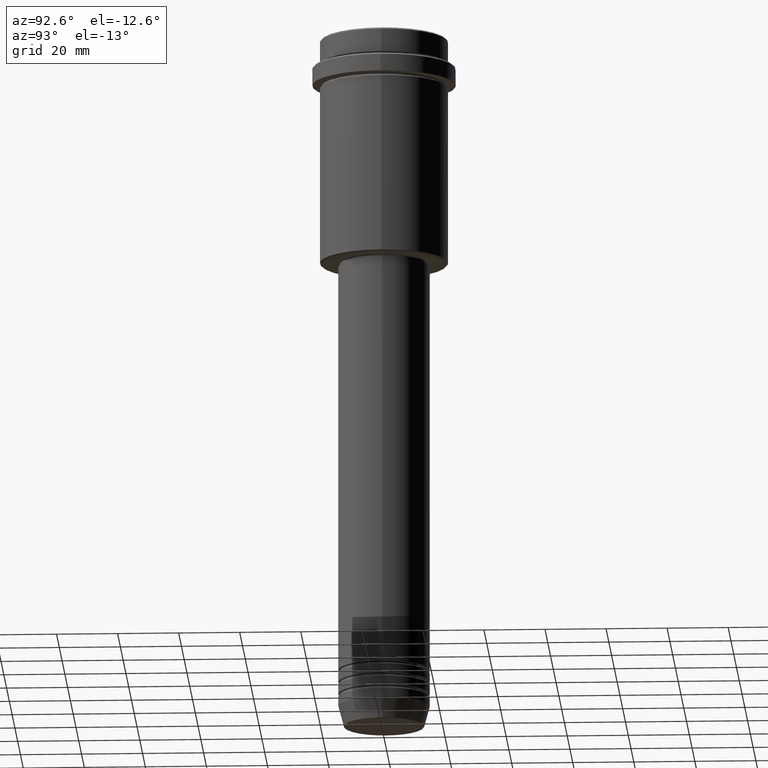
[diagram: clean part render]
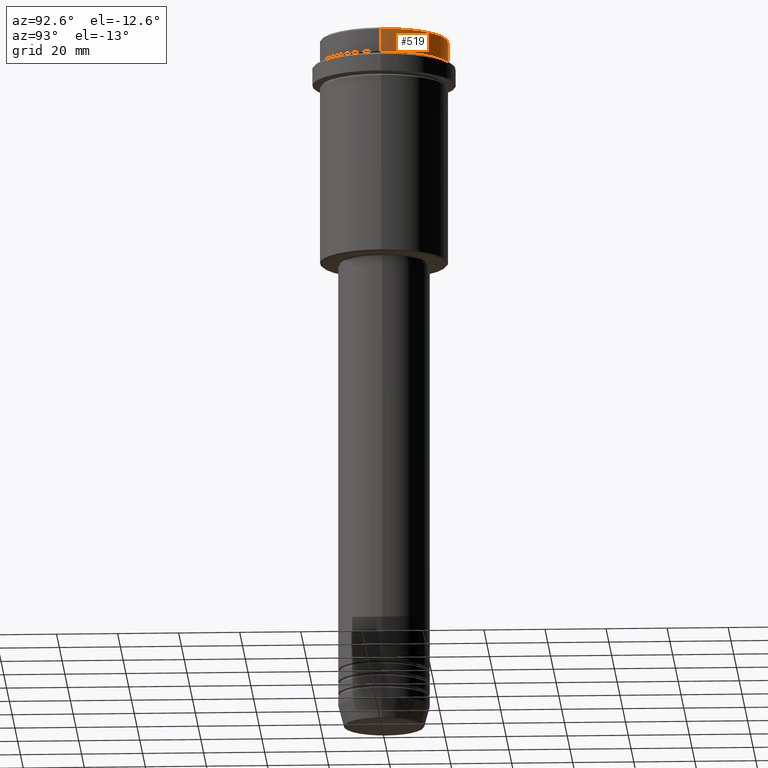
[diagram: same view with one face highlighted and labeled with its STEP entity id]
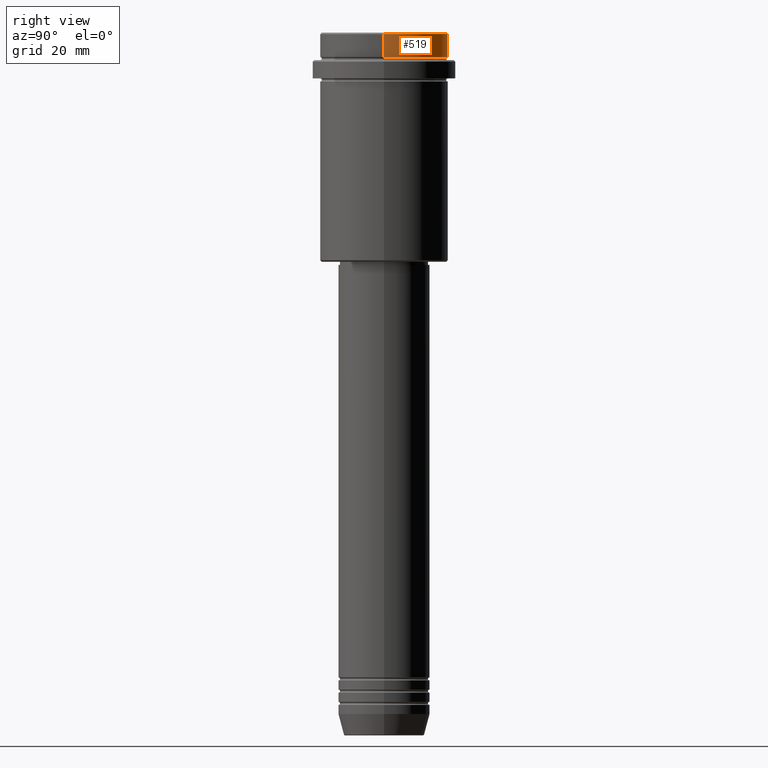
[diagram: same view with one face highlighted and labeled with its STEP entity id]
A machine part, auxiliary view. The second image highlights one B-rep face of the part: STEP entity #519.
A second angle (right view) of the same face is appended — the face is thin or edge-on in the first view.
In plain terms, the highlighted cylindrical surface (partial cylindrical patch) has radius 21 mm, axis along (-0, -0, 1).
Its self-contained STEP definition (entity closure, byte-faithful):
#9 = CYLINDRICAL_SURFACE ( 'NONE', #317, 20.99999999999999645 ) ;
#11 = VERTEX_POINT ( 'NONE', #580 ) ;
#14 = DIRECTION ( 'NONE',  ( -0.000000000000000000, -0.000000000000000000, 1.000000000000000000 ) ) ;
#30 = EDGE_CURVE ( 'NONE', #192, #132, #611, .T. ) ;
#50 = EDGE_CURVE ( 'NONE', #192, #646, #1236, .T. ) ;
#121 = DIRECTION ( 'NONE',  ( 0.000000000000000000, 0.000000000000000000, -1.000000000000000000 ) ) ;
#132 = VERTEX_POINT ( 'NONE', #289 ) ;
#181 = VECTOR ( 'NONE', #522, 1000.000000000000000 ) ;
#189 = ORIENTED_EDGE ( 'NONE', *, *, #348, .T. ) ;
#192 = VERTEX_POINT ( 'NONE', #1021 ) ;
#232 = CARTESIAN_POINT ( 'NONE',  ( 0.000000000000000000, 0.000000000000000000, -0.5000000000000073275 ) ) ;
#289 = CARTESIAN_POINT ( 'NONE',  ( -20.99999999999999645, 2.571758278209441267E-15, -7.999999999999998224 ) ) ;
#316 = LINE ( 'NONE', #644, #181 ) ;
#317 = AXIS2_PLACEMENT_3D ( 'NONE', #1106, #875, #1312 ) ;
#337 = CARTESIAN_POINT ( 'NONE',  ( 20.99999999999999645, 0.000000000000000000, 0.000000000000000000 ) ) ;
#348 = EDGE_CURVE ( 'NONE', #132, #11, #316, .T. ) ;
#393 = ORIENTED_EDGE ( 'NONE', *, *, #862, .T. ) ;
#476 = ORIENTED_EDGE ( 'NONE', *, *, #30, .T. ) ;
#519 = ADVANCED_FACE ( 'NONE', ( #1005 ), #9, .T. ) ;
#522 = DIRECTION ( 'NONE',  ( -0.000000000000000000, -0.000000000000000000, 1.000000000000000000 ) ) ;
#580 = CARTESIAN_POINT ( 'NONE',  ( -20.99999999999999645, 2.571758278209441267E-15, -0.5000000000000073275 ) ) ;
#595 = CARTESIAN_POINT ( 'NONE',  ( 20.99999999999999645, 0.000000000000000000, -0.5000000000000073275 ) ) ;
#611 = CIRCLE ( 'NONE', #1293, 20.99999999999999645 ) ;
#644 = CARTESIAN_POINT ( 'NONE',  ( -20.99999999999999645, 2.571758278209441267E-15, 0.000000000000000000 ) ) ;
#646 = VERTEX_POINT ( 'NONE', #595 ) ;
#658 = CIRCLE ( 'NONE', #1092, 20.99999999999999645 ) ;
#724 = VECTOR ( 'NONE', #1214, 1000.000000000000000 ) ;
#862 = EDGE_CURVE ( 'NONE', #11, #646, #658, .T. ) ;
#875 = DIRECTION ( 'NONE',  ( -0.000000000000000000, -0.000000000000000000, 1.000000000000000000 ) ) ;
#885 = DIRECTION ( 'NONE',  ( 1.000000000000000000, 0.000000000000000000, 0.000000000000000000 ) ) ;
#923 = EDGE_LOOP ( 'NONE', ( #476, #189, #393, #1180 ) ) ;
#978 = DIRECTION ( 'NONE',  ( 1.000000000000000000, 0.000000000000000000, 0.000000000000000000 ) ) ;
#1005 = FACE_OUTER_BOUND ( 'NONE', #923, .T. ) ;
#1021 = CARTESIAN_POINT ( 'NONE',  ( 20.99999999999999645, 0.000000000000000000, -7.999999999999998224 ) ) ;
#1092 = AXIS2_PLACEMENT_3D ( 'NONE', #232, #121, #978 ) ;
#1106 = CARTESIAN_POINT ( 'NONE',  ( 0.000000000000000000, 0.000000000000000000, 0.000000000000000000 ) ) ;
#1122 = CARTESIAN_POINT ( 'NONE',  ( 0.000000000000000000, 0.000000000000000000, -7.999999999999998224 ) ) ;
#1180 = ORIENTED_EDGE ( 'NONE', *, *, #50, .F. ) ;
#1214 = DIRECTION ( 'NONE',  ( -0.000000000000000000, -0.000000000000000000, 1.000000000000000000 ) ) ;
#1236 = LINE ( 'NONE', #337, #724 ) ;
#1293 = AXIS2_PLACEMENT_3D ( 'NONE', #1122, #14, #885 ) ;
#1312 = DIRECTION ( 'NONE',  ( 1.000000000000000000, 0.000000000000000000, 0.000000000000000000 ) ) ;